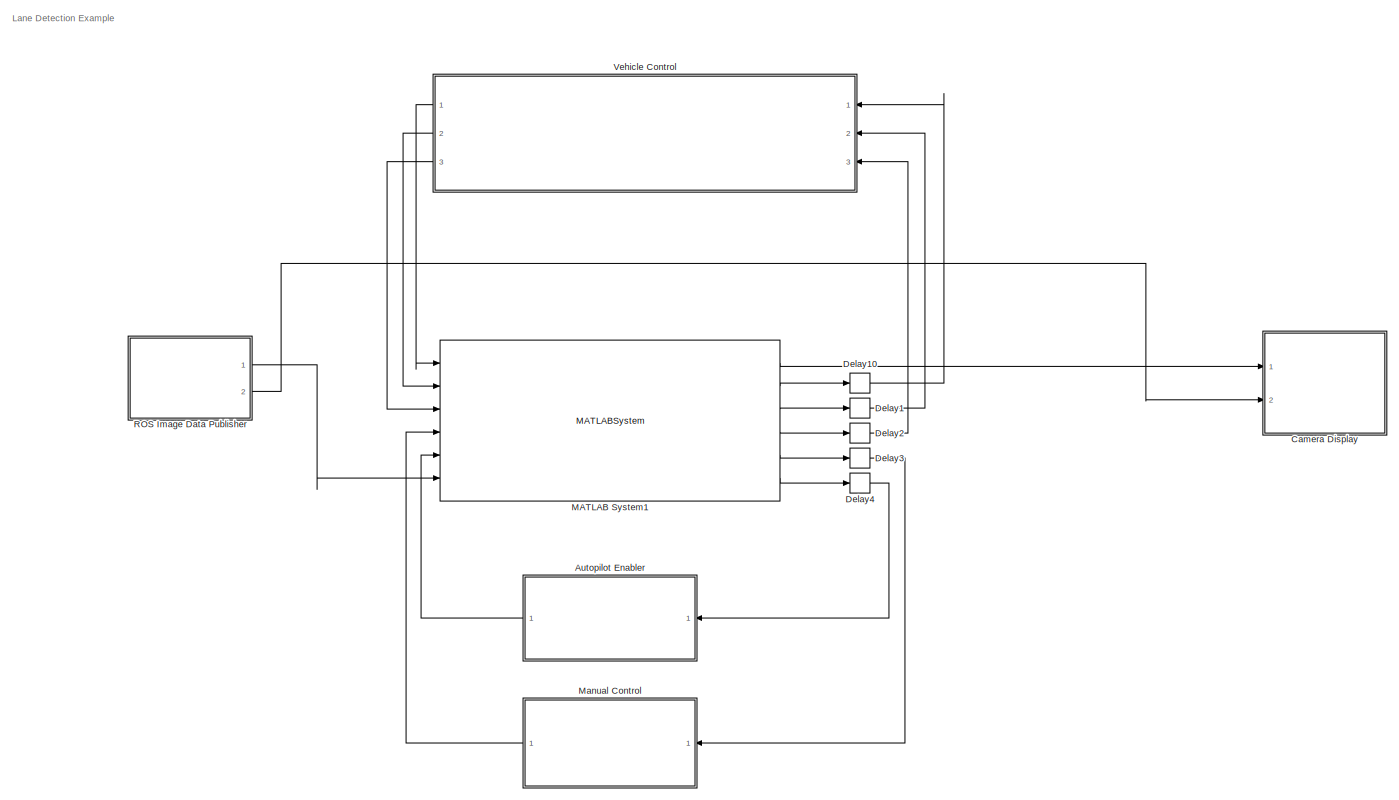
[diagram: root canvas - part 1/1, most of the canvas]
MODEL slx_51ee4e1e6def
KIND model
CONFIG AbsTol = auto
CONFIG EnableMultiTasking = on
CONFIG FixedStep = 0.2
CONFIG MaxStep = auto
CONFIG MinStep = auto
CONFIG RelTol = 1e-3
CONFIG SampleTimeConstraint = Unconstrained
CONFIG Solver = FixedStepAuto
CONFIG SolverName = FixedStepAuto
CONFIG StartTime = 0.0
CONFIG StopTime = inf
WORKSPACE source: mxarray member
WORKSPACE SL_ROS_VariableLengthArrays_MaxSizes: object (value not decoded)
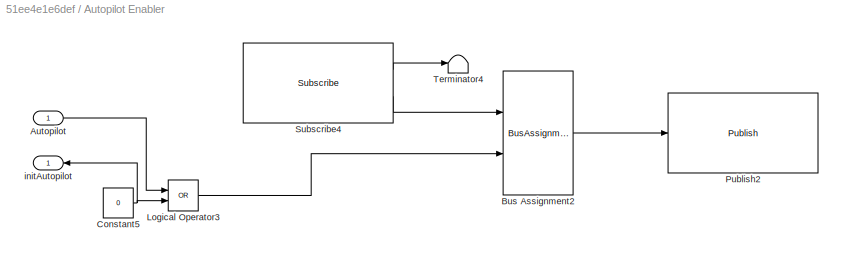
BLOCK [SubSystem] Autopilot Enabler
  Ports = [1, 1]
  RequestExecContextInheritance = off
BLOCK [Inport] Autopilot Enabler/Autopilot
  IconDisplay = Port number
BLOCK [BusAssignment] Autopilot Enabler/Bus Assignment2
  AssignedSignals = Data
  Ports = [2, 1]
BLOCK [Constant] Autopilot Enabler/Constant5
  OutDataTypeStr = boolean
  Value = 0
BLOCK [Logic] Autopilot Enabler/Logical Operator3
  AllPortsSameDT = off
  Operator = OR
  OutDataTypeStr = boolean
  Ports = [2, 1]
BLOCK [Reference] Autopilot Enabler/Publish2  REF=robotlib/Publish
  Ports = [1]
  SourceBlock = robotlib/Publish
  SourceProductBaseCode = RR
  SourceProductName = ROS Toolbox
  SourceType = ROS Publish
BLOCK [Reference] Autopilot Enabler/Subscribe4  REF=robotlib/Subscribe
  Ports = [0, 2]
  SourceBlock = robotlib/Subscribe
  SourceProductBaseCode = RR
  SourceProductName = ROS Toolbox
  SourceType = ROS Subscribe
BLOCK [Terminator] Autopilot Enabler/Terminator4
BLOCK [Outport] Autopilot Enabler/initAutopilot
  IconDisplay = Port number
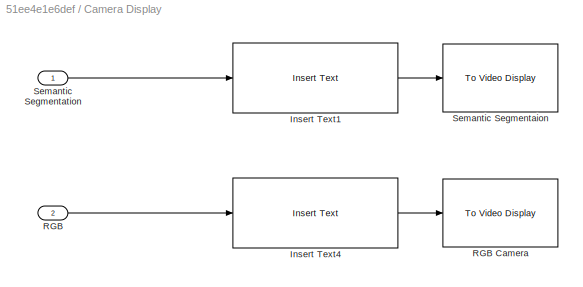
BLOCK [SubSystem] Camera Display
  Ports = [2]
  RequestExecContextInheritance = off
BLOCK [Reference] Camera Display/Insert Text1  REF=visiontextngfix/Insert Text
  Ports = [1, 1]
  SourceBlock = visiontextngfix/Insert Text
  SourceProductBaseCode = VP
  SourceProductName = Computer Vision Toolbox
  SourceType = Insert Text
BLOCK [Reference] Camera Display/Insert Text4  REF=visiontextngfix/Insert Text
  Ports = [1, 1]
  SourceBlock = visiontextngfix/Insert Text
  SourceProductBaseCode = VP
  SourceProductName = Computer Vision Toolbox
  SourceType = Insert Text
BLOCK [Inport] Camera Display/RGB
  IconDisplay = Port number
  Port = 2
BLOCK [Reference] Camera Display/RGB Camera  REF=visionsinks/To Video Display
  Ports = [1]
  SourceBlock = visionsinks/To Video Display
  SourceProductBaseCode = VP
  SourceProductName = Computer Vision Toolbox
  SourceType = To Video Display
BLOCK [Reference] Camera Display/Semantic Segmentaion  REF=visionsinks/To Video Display
  Ports = [1]
  SourceBlock = visionsinks/To Video Display
  SourceProductBaseCode = VP
  SourceProductName = Computer Vision Toolbox
  SourceType = To Video Display
BLOCK [Inport] Camera Display/Semantic Segmentation
  IconDisplay = Port number
BLOCK [Delay] Delay1
  DelayLength = 1
  InitialCondition = 0
  InputPortMap = u0
  Ports = [1, 1]
BLOCK [Delay] Delay10
  DelayLength = 1
  InitialCondition = 0
  InputPortMap = u0
  Ports = [1, 1]
BLOCK [Delay] Delay2
  DelayLength = 1
  InitialCondition = 0
  InputPortMap = u0
  Ports = [1, 1]
BLOCK [Delay] Delay3
  DelayLength = 1
  InitialCondition = 0
  InputPortMap = u0
  Ports = [1, 1]
BLOCK [Delay] Delay4
  DelayLength = 1
  InitialCondition = 0
  InputPortMap = u0
  Ports = [1, 1]
BLOCK [MATLABSystem] MATLAB System1
  MaskDisplay = disp('LaneDetection');\nport_label('input',1,'steer_prev');\nport_label('input',2,'throttle_prev');\nport_label('input',3,'brake_prev');\nport_label('input',4,'manualcontrol_prev');\nport_label('input',5,'autopilot_prev');\nport_label('input',6,'SEMANTIC_IN');\nport_label('output',1,'SEMANTIC_SEGMENTATION');\nport_label('output',2,'steer');\nport_label('output',3,'throttle');\nport_label('output',4,'brake')...<+77ch>
  MaskType = LaneDetection
  Ports = [6, 6]
  SimulateUsing = Interpreted execution
  System = LaneDetection
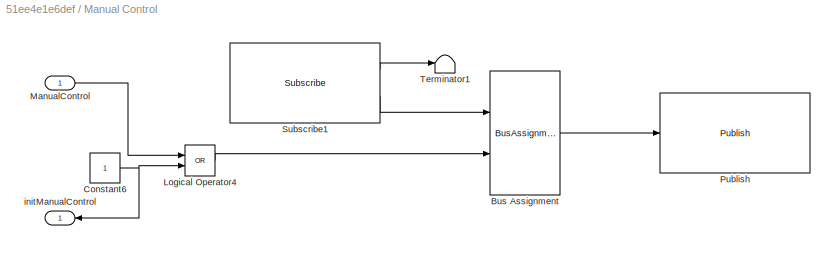
BLOCK [SubSystem] Manual Control
  Ports = [1, 1]
  RequestExecContextInheritance = off
BLOCK [BusAssignment] Manual Control/Bus Assignment
  AssignedSignals = Data
  Ports = [2, 1]
BLOCK [Constant] Manual Control/Constant6
  OutDataTypeStr = boolean
BLOCK [Logic] Manual Control/Logical Operator4
  AllPortsSameDT = off
  Operator = OR
  OutDataTypeStr = boolean
  Ports = [2, 1]
BLOCK [Inport] Manual Control/ManualControl
  IconDisplay = Port number
BLOCK [Reference] Manual Control/Publish  REF=robotlib/Publish
  Ports = [1]
  SourceBlock = robotlib/Publish
  SourceProductBaseCode = RR
  SourceProductName = ROS Toolbox
  SourceType = ROS Publish
BLOCK [Reference] Manual Control/Subscribe1  REF=robotlib/Subscribe
  Ports = [0, 2]
  SourceBlock = robotlib/Subscribe
  SourceProductBaseCode = RR
  SourceProductName = ROS Toolbox
  SourceType = ROS Subscribe
BLOCK [Terminator] Manual Control/Terminator1
BLOCK [Outport] Manual Control/initManualControl
  IconDisplay = Port number
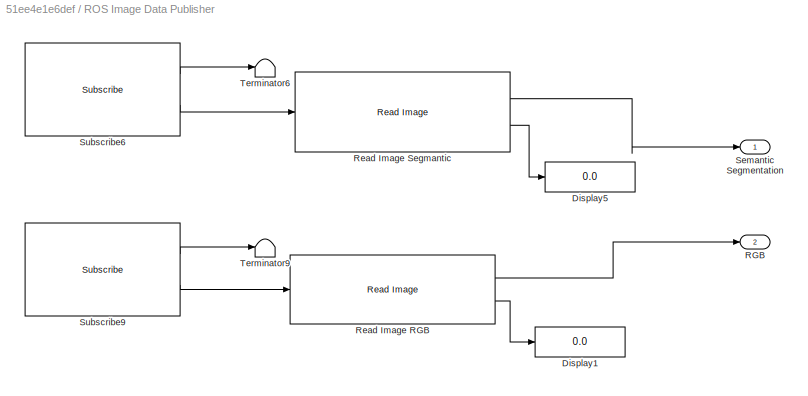
BLOCK [SubSystem] ROS Image Data Publisher
  Ports = [0, 2]
  RequestExecContextInheritance = off
BLOCK [Display] ROS Image Data Publisher/Display1
  Decimation = 1
  Ports = [1]
BLOCK [Display] ROS Image Data Publisher/Display5
  Decimation = 1
  Ports = [1]
BLOCK [Outport] ROS Image Data Publisher/RGB
  IconDisplay = Port number
  Port = 2
BLOCK [Reference] ROS Image Data Publisher/Read Image RGB  REF=robotlib/Read Image
  Ports = [1, 2]
  SourceBlock = robotlib/Read Image
  SourceProductBaseCode = RO
  SourceProductName = Robotics System Toolbox
  SourceType = ros.slros.internal.block.ReadImage
BLOCK [Reference] ROS Image Data Publisher/Read Image Segmantic  REF=robotlib/Read Image
  Ports = [1, 2]
  SourceBlock = robotlib/Read Image
  SourceProductBaseCode = RR
  SourceProductName = ROS Toolbox
  SourceType = ros.slros.internal.block.ReadImage
BLOCK [Outport] ROS Image Data Publisher/Semantic Segmentation
  IconDisplay = Port number
BLOCK [Reference] ROS Image Data Publisher/Subscribe6  REF=robotlib/Subscribe
  Ports = [0, 2]
  SourceBlock = robotlib/Subscribe
  SourceProductBaseCode = RO
  SourceProductName = Robotics System Toolbox
  SourceType = ROS Subscribe
BLOCK [Reference] ROS Image Data Publisher/Subscribe9  REF=robotlib/Subscribe
  Ports = [0, 2]
  SourceBlock = robotlib/Subscribe
  SourceProductBaseCode = RO
  SourceProductName = Robotics System Toolbox
  SourceType = ROS Subscribe
BLOCK [Terminator] ROS Image Data Publisher/Terminator6
BLOCK [Terminator] ROS Image Data Publisher/Terminator9
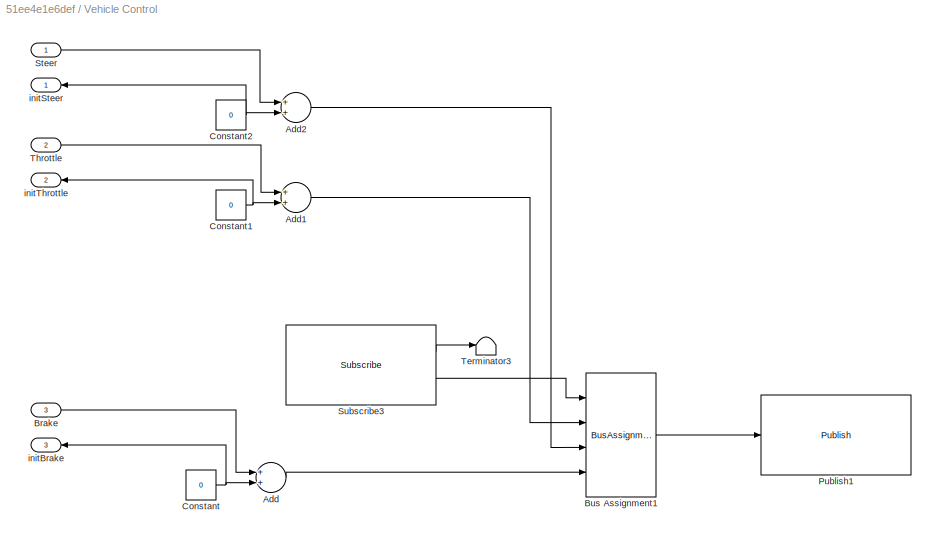
BLOCK [SubSystem] Vehicle Control
  Ports = [3, 3]
  RequestExecContextInheritance = off
BLOCK [Sum] Vehicle Control/Add
  InputSameDT = off
  OutDataTypeStr = Inherit: Inherit via internal rule
  Ports = [2, 1]
  SaturateOnIntegerOverflow = off
BLOCK [Sum] Vehicle Control/Add1
  InputSameDT = off
  OutDataTypeStr = Inherit: Inherit via internal rule
  Ports = [2, 1]
  SaturateOnIntegerOverflow = off
BLOCK [Sum] Vehicle Control/Add2
  InputSameDT = off
  OutDataTypeStr = Inherit: Inherit via internal rule
  Ports = [2, 1]
  SaturateOnIntegerOverflow = off
BLOCK [Inport] Vehicle Control/Brake
  IconDisplay = Port number
  Port = 3
BLOCK [BusAssignment] Vehicle Control/Bus Assignment1
  AssignedSignals = Throttle,Steer,Brake
  Ports = [4, 1]
BLOCK [Constant] Vehicle Control/Constant
  OutDataTypeStr = single
  Value = 0
BLOCK [Constant] Vehicle Control/Constant1
  OutDataTypeStr = single
  Value = 0
BLOCK [Constant] Vehicle Control/Constant2
  OutDataTypeStr = single
  Value = 0
BLOCK [Reference] Vehicle Control/Publish1  REF=robotlib/Publish
  Ports = [1]
  SourceBlock = robotlib/Publish
  SourceProductBaseCode = RR
  SourceProductName = ROS Toolbox
  SourceType = ROS Publish
BLOCK [Inport] Vehicle Control/Steer
  IconDisplay = Port number
BLOCK [Reference] Vehicle Control/Subscribe3  REF=robotlib/Subscribe
  Ports = [0, 2]
  SourceBlock = robotlib/Subscribe
  SourceProductBaseCode = RR
  SourceProductName = ROS Toolbox
  SourceType = ROS Subscribe
BLOCK [Terminator] Vehicle Control/Terminator3
BLOCK [Inport] Vehicle Control/Throttle
  IconDisplay = Port number
  Port = 2
BLOCK [Outport] Vehicle Control/initBrake
  IconDisplay = Port number
  Port = 3
BLOCK [Outport] Vehicle Control/initSteer
  IconDisplay = Port number
BLOCK [Outport] Vehicle Control/initThrottle
  IconDisplay = Port number
  Port = 2
ANNOTATION (root): Lane Detection Example
LINE Autopilot Enabler/Autopilot:1 -> Autopilot Enabler/Logical Operator3:1
LINE Autopilot Enabler/Bus Assignment2:1 -> Autopilot Enabler/Publish2:1
NET Autopilot Enabler/Constant5:1 -> Autopilot Enabler/Logical Operator3:2, Autopilot Enabler/initAutopilot:1
LINE Autopilot Enabler/Logical Operator3:1 -> Autopilot Enabler/Bus Assignment2:2
LINE Autopilot Enabler/Subscribe4:1 -> Autopilot Enabler/Terminator4:1
LINE Autopilot Enabler/Subscribe4:2 -> Autopilot Enabler/Bus Assignment2:1
LINE Autopilot Enabler:1 -> MATLAB System1:5
LINE Camera Display/Insert Text1:1 -> Camera Display/Semantic Segmentaion:1
LINE Camera Display/Insert Text4:1 -> Camera Display/RGB Camera:1
LINE Camera Display/RGB:1 -> Camera Display/Insert Text4:1
LINE Camera Display/Semantic Segmentation:1 -> Camera Display/Insert Text1:1
LINE Delay10:1 -> Vehicle Control:1
LINE Delay1:1 -> Vehicle Control:2
LINE Delay2:1 -> Vehicle Control:3
LINE Delay3:1 -> Manual Control:1
LINE Delay4:1 -> Autopilot Enabler:1
LINE MATLAB System1:1 -> Camera Display:1
LINE MATLAB System1:2 -> Delay10:1
LINE MATLAB System1:3 -> Delay1:1
LINE MATLAB System1:4 -> Delay2:1
LINE MATLAB System1:5 -> Delay3:1
LINE MATLAB System1:6 -> Delay4:1
LINE Manual Control/Bus Assignment:1 -> Manual Control/Publish:1
NET Manual Control/Constant6:1 -> Manual Control/Logical Operator4:2, Manual Control/initManualControl:1
LINE Manual Control/Logical Operator4:1 -> Manual Control/Bus Assignment:2
LINE Manual Control/ManualControl:1 -> Manual Control/Logical Operator4:1
LINE Manual Control/Subscribe1:1 -> Manual Control/Terminator1:1
LINE Manual Control/Subscribe1:2 -> Manual Control/Bus Assignment:1
LINE Manual Control:1 -> MATLAB System1:4
LINE ROS Image Data Publisher/Read Image RGB:1 -> ROS Image Data Publisher/RGB:1
LINE ROS Image Data Publisher/Read Image RGB:2 -> ROS Image Data Publisher/Display1:1
LINE ROS Image Data Publisher/Read Image Segmantic:1 -> ROS Image Data Publisher/Semantic Segmentation:1
LINE ROS Image Data Publisher/Read Image Segmantic:2 -> ROS Image Data Publisher/Display5:1
LINE ROS Image Data Publisher/Subscribe6:1 -> ROS Image Data Publisher/Terminator6:1
LINE ROS Image Data Publisher/Subscribe6:2 -> ROS Image Data Publisher/Read Image Segmantic:1
LINE ROS Image Data Publisher/Subscribe9:1 -> ROS Image Data Publisher/Terminator9:1
LINE ROS Image Data Publisher/Subscribe9:2 -> ROS Image Data Publisher/Read Image RGB:1
LINE ROS Image Data Publisher:1 -> MATLAB System1:6
LINE ROS Image Data Publisher:2 -> Camera Display:2
LINE Vehicle Control/Add1:1 -> Vehicle Control/Bus Assignment1:2
LINE Vehicle Control/Add2:1 -> Vehicle Control/Bus Assignment1:3
LINE Vehicle Control/Add:1 -> Vehicle Control/Bus Assignment1:4
LINE Vehicle Control/Brake:1 -> Vehicle Control/Add:1
LINE Vehicle Control/Bus Assignment1:1 -> Vehicle Control/Publish1:1
NET Vehicle Control/Constant1:1 -> Vehicle Control/Add1:2, Vehicle Control/initThrottle:1
NET Vehicle Control/Constant2:1 -> Vehicle Control/Add2:2, Vehicle Control/initSteer:1
NET Vehicle Control/Constant:1 -> Vehicle Control/Add:2, Vehicle Control/initBrake:1
LINE Vehicle Control/Steer:1 -> Vehicle Control/Add2:1
LINE Vehicle Control/Subscribe3:1 -> Vehicle Control/Terminator3:1
LINE Vehicle Control/Subscribe3:2 -> Vehicle Control/Bus Assignment1:1
LINE Vehicle Control/Throttle:1 -> Vehicle Control/Add1:1
LINE Vehicle Control:1 -> MATLAB System1:1
LINE Vehicle Control:2 -> MATLAB System1:2
LINE Vehicle Control:3 -> MATLAB System1:3
note: NET lines group one-source signal fan-out (src -> all destinations, sorted); 1:1 wires keep LINE
